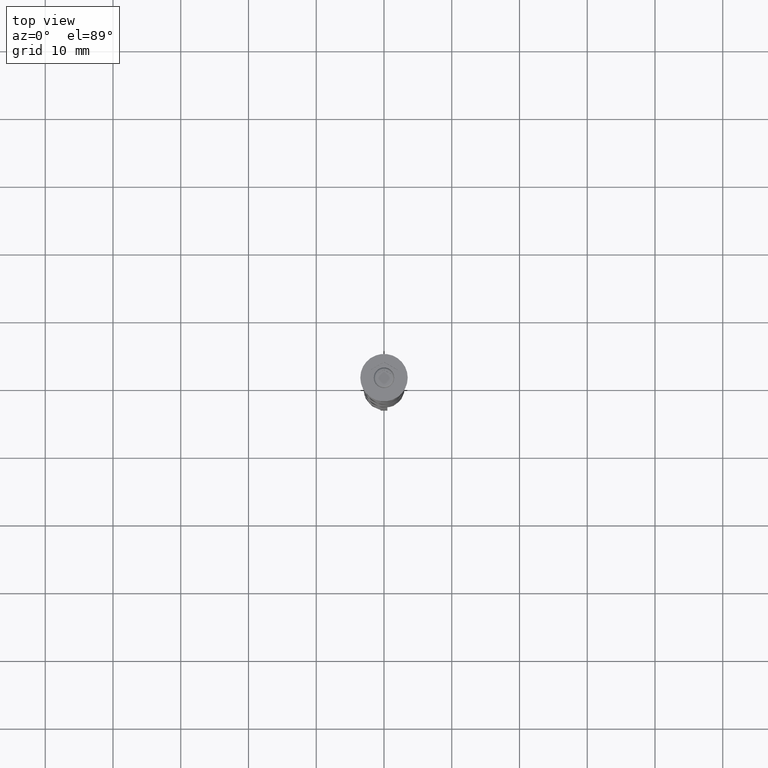
[diagram: clean part render]
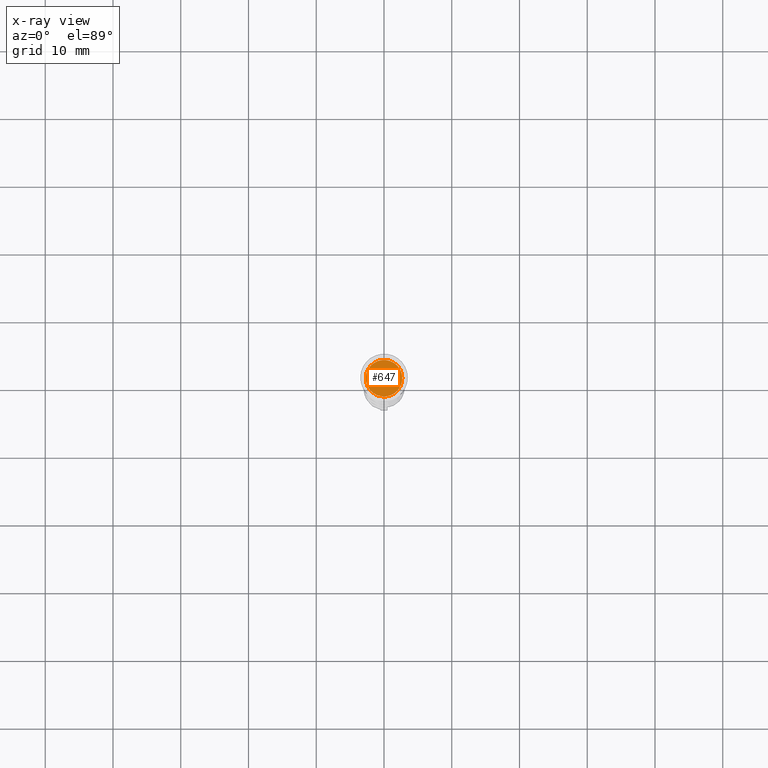
[diagram: x-ray — body ghosted, one internal face saturated and labeled with its STEP entity id]
A machine part, top view, then the same camera in x-ray: the body is ghosted and one INTERNAL B-rep face — a face not visible from any outside direction — is saturated and labeled: STEP entity #647.
In plain terms, the highlighted planar face has unit normal (0, 0, -1).
Its self-contained STEP definition (entity closure, byte-faithful):
#33 = DIRECTION ( 'NONE',  ( -0.000000000000000000, -0.000000000000000000, 1.000000000000000000 ) ) ;
#174 = CARTESIAN_POINT ( 'NONE',  ( -2.700000000000002398, 0.000000000000000000, -5.500000000000000000 ) ) ;
#305 = ORIENTED_EDGE ( 'NONE', *, *, #1002, .T. ) ;
#362 = ORIENTED_EDGE ( 'NONE', *, *, #2389, .T. ) ;
#647 = ADVANCED_FACE ( 'NONE', ( #1887 ), #1092, .F. ) ;
#786 = VERTEX_POINT ( 'NONE', #174 ) ;
#800 = DIRECTION ( 'NONE',  ( -1.000000000000000000, 0.000000000000000000, -0.000000000000000000 ) ) ;
#1002 = EDGE_CURVE ( 'NONE', #786, #3128, #3146, .T. ) ;
#1025 = DIRECTION ( 'NONE',  ( -1.000000000000000000, 0.000000000000000000, 0.000000000000000000 ) ) ;
#1092 = PLANE ( 'NONE',  #2264 ) ;
#1534 = CIRCLE ( 'NONE', #2645, 2.700000000000002398 ) ;
#1540 = AXIS2_PLACEMENT_3D ( 'NONE', #3426, #33, #3169 ) ;
#1589 = CARTESIAN_POINT ( 'NONE',  ( 0.000000000000000000, 0.000000000000000000, -5.500000000000000000 ) ) ;
#1860 = CARTESIAN_POINT ( 'NONE',  ( 2.700000000000002398, 3.490243377569959512E-16, -5.500000000000000000 ) ) ;
#1887 = FACE_OUTER_BOUND ( 'NONE', #2262, .T. ) ;
#2262 = EDGE_LOOP ( 'NONE', ( #305, #362 ) ) ;
#2264 = AXIS2_PLACEMENT_3D ( 'NONE', #1589, #2684, #800 ) ;
#2335 = CARTESIAN_POINT ( 'NONE',  ( 0.000000000000000000, 0.000000000000000000, -5.500000000000000000 ) ) ;
#2389 = EDGE_CURVE ( 'NONE', #3128, #786, #1534, .T. ) ;
#2614 = DIRECTION ( 'NONE',  ( -0.000000000000000000, -0.000000000000000000, 1.000000000000000000 ) ) ;
#2645 = AXIS2_PLACEMENT_3D ( 'NONE', #2335, #2614, #1025 ) ;
#2684 = DIRECTION ( 'NONE',  ( 0.000000000000000000, 0.000000000000000000, -1.000000000000000000 ) ) ;
#3128 = VERTEX_POINT ( 'NONE', #1860 ) ;
#3146 = CIRCLE ( 'NONE', #1540, 2.700000000000002398 ) ;
#3169 = DIRECTION ( 'NONE',  ( -1.000000000000000000, 0.000000000000000000, 0.000000000000000000 ) ) ;
#3426 = CARTESIAN_POINT ( 'NONE',  ( 0.000000000000000000, 0.000000000000000000, -5.500000000000000000 ) ) ;